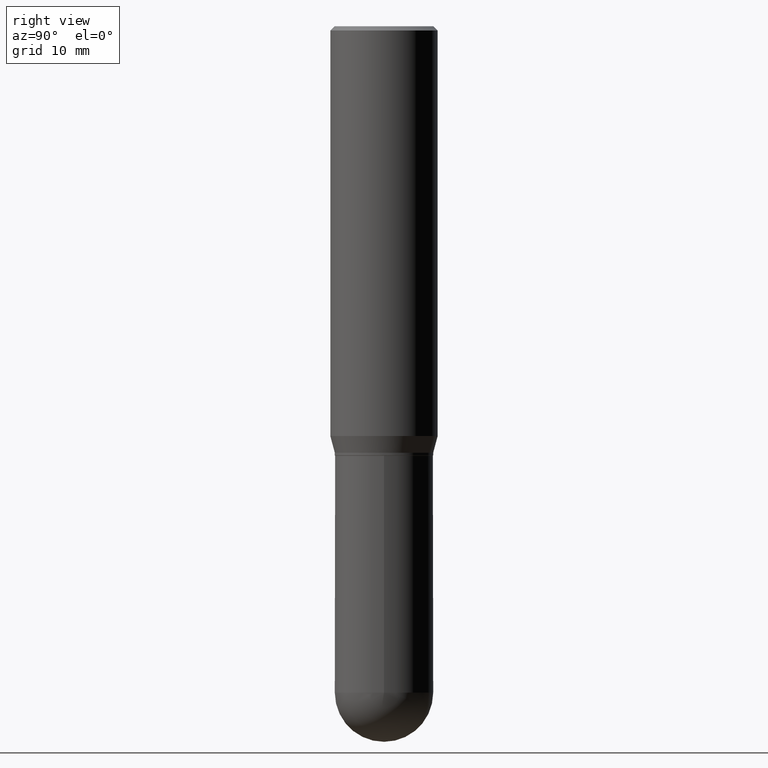
[diagram: clean part render]
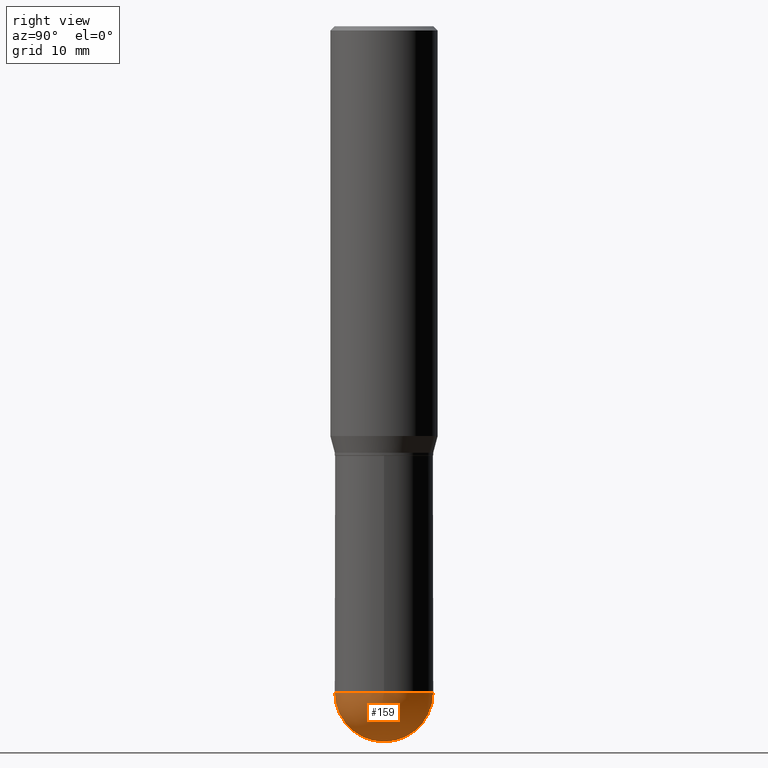
[diagram: same view with one face highlighted and labeled with its STEP entity id]
A machine part, right view. The second image highlights one B-rep face of the part: STEP entity #159.
In plain terms, the highlighted spherical surface has radius 4.3663 mm.
Its self-contained STEP definition (entity closure, byte-faithful):
#25 = VERTEX_POINT ( 'NONE', #124 ) ;
#42 = ORIENTED_EDGE ( 'NONE', *, *, #43, .F. ) ;
#43 = EDGE_CURVE ( 'NONE', #106, #119, #422, .T. ) ;
#57 = DIRECTION ( 'NONE',  ( -2.445468806185136597E-29, 3.491481338843145583E-15, 1.000000000000000000 ) ) ;
#62 = CIRCLE ( 'NONE', #336, 0.1718999999999999417 ) ;
#69 = EDGE_CURVE ( 'NONE', #106, #25, #62, .T. ) ;
#75 = SPHERICAL_SURFACE ( 'NONE', #190, 0.1718999999999999417 ) ;
#83 = CARTESIAN_POINT ( 'NONE',  ( 5.678595619168622984E-29, -8.149569383438070914E-15, -2.328100000000000058 ) ) ;
#87 = CARTESIAN_POINT ( 'NONE',  ( 0.1719000000000000250, -7.883241140906993293E-15, -2.328100000000000058 ) ) ;
#95 = EDGE_CURVE ( 'NONE', #119, #99, #117, .T. ) ;
#99 = VERTEX_POINT ( 'NONE', #87 ) ;
#106 = VERTEX_POINT ( 'NONE', #413 ) ;
#115 = DIRECTION ( 'NONE',  ( -1.000000000000000000, 6.982962677686265922E-15, -4.883557194083112340E-29 ) ) ;
#117 = CIRCLE ( 'NONE', #313, 0.1719000000000000250 ) ;
#119 = VERTEX_POINT ( 'NONE', #375 ) ;
#121 = DIRECTION ( 'NONE',  ( 6.982962677686266711E-15, 1.000000000000000000, 0.000000000000000000 ) ) ;
#124 = CARTESIAN_POINT ( 'NONE',  ( 1.200371284294326039E-15, 0.1718999999999918094, -2.328100000000000946 ) ) ;
#148 = DIRECTION ( 'NONE',  ( -2.445468806185136597E-29, 3.491481338843145583E-15, 1.000000000000000000 ) ) ;
#151 = ORIENTED_EDGE ( 'NONE', *, *, #95, .F. ) ;
#159 = ADVANCED_FACE ( 'NONE', ( #344 ), #75, .T. ) ;
#190 = AXIS2_PLACEMENT_3D ( 'NONE', #83, #115, #341 ) ;
#202 = AXIS2_PLACEMENT_3D ( 'NONE', #358, #240, #410 ) ;
#237 = CARTESIAN_POINT ( 'NONE',  ( 5.693295927679617284E-29, -8.128517704960729139E-15, -2.328100000000000058 ) ) ;
#240 = DIRECTION ( 'NONE',  ( -1.000000000000000000, 7.105427357601001070E-15, -4.926315508542082329E-29 ) ) ;
#242 = EDGE_CURVE ( 'NONE', #99, #25, #291, .T. ) ;
#268 = ORIENTED_EDGE ( 'NONE', *, *, #69, .T. ) ;
#284 = CARTESIAN_POINT ( 'NONE',  ( 5.693295927679617284E-29, -8.128517704960729139E-15, -2.328100000000000058 ) ) ;
#286 = CARTESIAN_POINT ( 'NONE',  ( 5.678595619168622984E-29, -8.149569383438070914E-15, -2.328100000000000058 ) ) ;
#291 = CIRCLE ( 'NONE', #328, 0.1719000000000000250 ) ;
#307 = DIRECTION ( 'NONE',  ( 1.000000000000000000, -6.982962677686271444E-15, 0.000000000000000000 ) ) ;
#313 = AXIS2_PLACEMENT_3D ( 'NONE', #284, #57, #451 ) ;
#328 = AXIS2_PLACEMENT_3D ( 'NONE', #237, #148, #307 ) ;
#336 = AXIS2_PLACEMENT_3D ( 'NONE', #286, #459, #121 ) ;
#341 = DIRECTION ( 'NONE',  ( 6.982962677686265922E-15, 1.000000000000000000, -3.178415350394722463E-15 ) ) ;
#344 = FACE_OUTER_BOUND ( 'NONE', #447, .T. ) ;
#358 = CARTESIAN_POINT ( 'NONE',  ( 5.678595619168622984E-29, -8.149569383438070914E-15, -2.328100000000000058 ) ) ;
#375 = CARTESIAN_POINT ( 'NONE',  ( -1.221422962771555008E-15, -0.1719000000000081296, -2.328099999999999614 ) ) ;
#410 = DIRECTION ( 'NONE',  ( -7.105427357601001070E-15, -1.000000000000000000, 0.000000000000000000 ) ) ;
#413 = CARTESIAN_POINT ( 'NONE',  ( 6.106321861207344902E-29, -8.739229186346536619E-15, -2.500000000000000000 ) ) ;
#422 = CIRCLE ( 'NONE', #202, 0.1718999999999999417 ) ;
#447 = EDGE_LOOP ( 'NONE', ( #42, #268, #472, #151 ) ) ;
#451 = DIRECTION ( 'NONE',  ( 1.000000000000000000, -6.982962677686271444E-15, 0.000000000000000000 ) ) ;
#459 = DIRECTION ( 'NONE',  ( 1.000000000000000000, -6.982962677686265922E-15, 4.883557194083112340E-29 ) ) ;
#472 = ORIENTED_EDGE ( 'NONE', *, *, #242, .F. ) ;